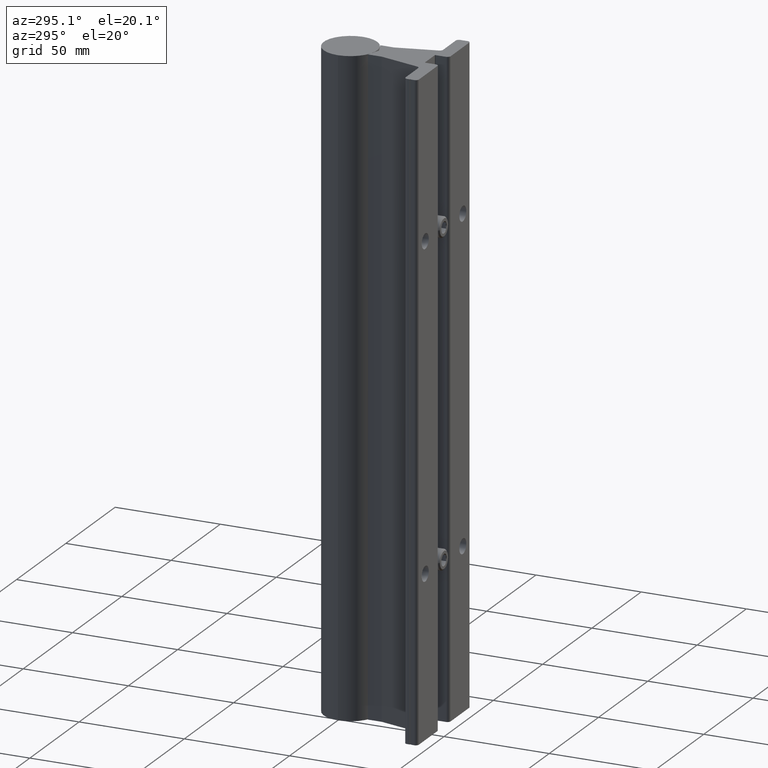
[diagram: clean part render]
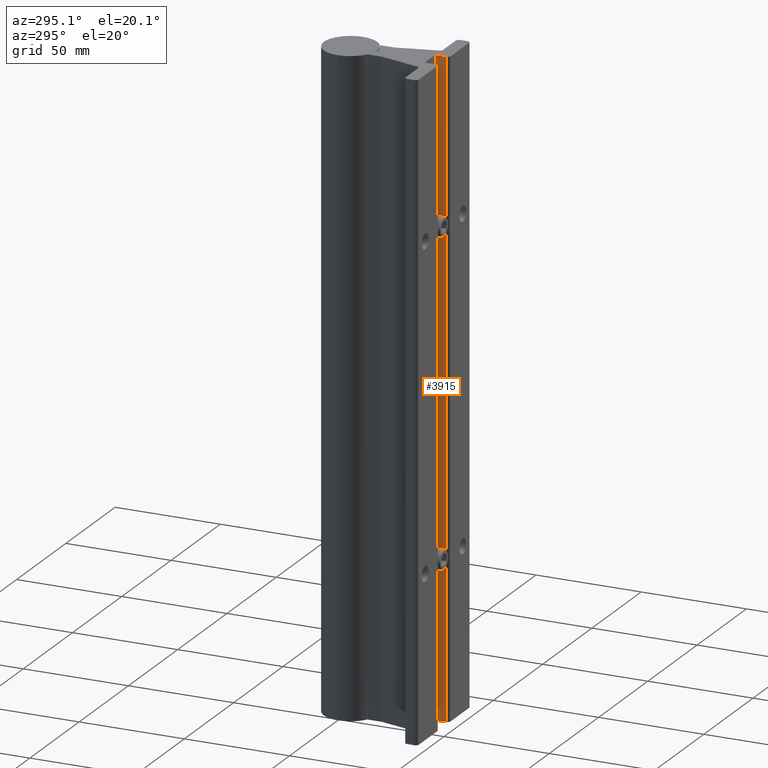
[diagram: same view with one face highlighted and labeled with its STEP entity id]
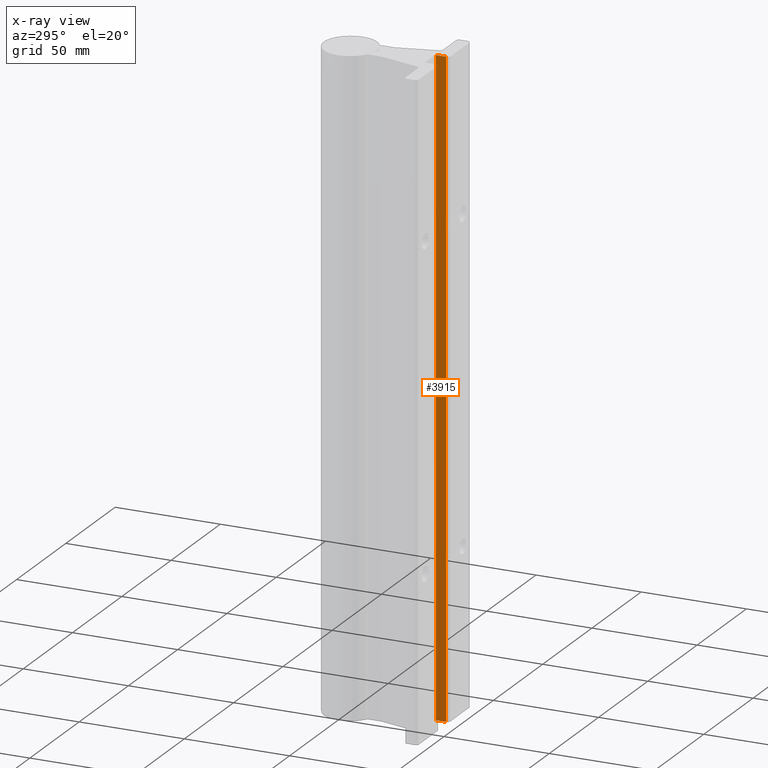
[diagram: x-ray of the same camera — body ghosted, the highlighted face saturated]
A machine part, auxiliary view. The second image highlights one B-rep face of the part: STEP entity #3915.
The next image is the same camera in x-ray: the body ghosted, the highlighted face saturated — about 0% of this face is hidden behind the body in this view.
In plain terms, the highlighted planar face has unit normal (-1, -0, 0).
Its self-contained STEP definition (entity closure, byte-faithful):
#34 = EDGE_CURVE ( 'NONE', #2077, #3679, #3450, .T. ) ;
#187 = CARTESIAN_POINT ( 'NONE',  ( 0.2049999999966986286, 0.06000000000000024758, -12.00000000000000178 ) ) ;
#247 = CARTESIAN_POINT ( 'NONE',  ( 0.2049999999966982400, 0.2500000000000001110, -14.49573696227415098 ) ) ;
#430 = LINE ( 'NONE', #2583, #669 ) ;
#634 = CARTESIAN_POINT ( 'NONE',  ( 0.2049999999966982400, 0.2500000000000001110, -14.49573696227415098 ) ) ;
#669 = VECTOR ( 'NONE', #3870, 39.37007874015748143 ) ;
#808 = CARTESIAN_POINT ( 'NONE',  ( 0.2049999999966982400, 0.2500000000000001110, 0.000000000000000000 ) ) ;
#876 = LINE ( 'NONE', #2106, #892 ) ;
#892 = VECTOR ( 'NONE', #3347, 39.37007874015748143 ) ;
#992 = VECTOR ( 'NONE', #3676, 39.37007874015748143 ) ;
#1068 = ORIENTED_EDGE ( 'NONE', *, *, #2284, .T. ) ;
#1118 = EDGE_CURVE ( 'NONE', #2419, #2077, #876, .T. ) ;
#1444 = EDGE_CURVE ( 'NONE', #3679, #1922, #1447, .T. ) ;
#1447 = LINE ( 'NONE', #808, #2123 ) ;
#1922 = VERTEX_POINT ( 'NONE', #2414 ) ;
#2030 = ORIENTED_EDGE ( 'NONE', *, *, #1444, .F. ) ;
#2077 = VERTEX_POINT ( 'NONE', #3407 ) ;
#2106 = CARTESIAN_POINT ( 'NONE',  ( 0.2049999999966982400, 0.2500000000000001110, -12.00000000000000178 ) ) ;
#2123 = VECTOR ( 'NONE', #2649, 39.37007874015748143 ) ;
#2284 = EDGE_CURVE ( 'NONE', #2419, #1922, #430, .T. ) ;
#2414 = CARTESIAN_POINT ( 'NONE',  ( 0.2049999999966986286, 0.06000000000000027534, 0.000000000000000000 ) ) ;
#2419 = VERTEX_POINT ( 'NONE', #187 ) ;
#2470 = AXIS2_PLACEMENT_3D ( 'NONE', #247, #3383, #3623 ) ;
#2583 = CARTESIAN_POINT ( 'NONE',  ( 0.2049999999966986286, 0.06000000000000027534, -14.49573696227415098 ) ) ;
#2646 = ORIENTED_EDGE ( 'NONE', *, *, #1118, .F. ) ;
#2649 = DIRECTION ( 'NONE',  ( 1.976995258572823265E-15, -1.000000000000000000, 0.000000000000000000 ) ) ;
#2783 = CARTESIAN_POINT ( 'NONE',  ( 0.2049999999966982123, 0.2500000000000001110, 0.000000000000000000 ) ) ;
#2887 = ORIENTED_EDGE ( 'NONE', *, *, #34, .F. ) ;
#3015 = FACE_OUTER_BOUND ( 'NONE', #3512, .T. ) ;
#3347 = DIRECTION ( 'NONE',  ( -1.976995258572823265E-15, 1.000000000000000000, 0.000000000000000000 ) ) ;
#3383 = DIRECTION ( 'NONE',  ( -1.000000000000000000, -1.976995258572823265E-15, 0.000000000000000000 ) ) ;
#3407 = CARTESIAN_POINT ( 'NONE',  ( 0.2049999999966982123, 0.2500000000000000555, -12.00000000000000178 ) ) ;
#3450 = LINE ( 'NONE', #634, #992 ) ;
#3512 = EDGE_LOOP ( 'NONE', ( #2646, #1068, #2030, #2887 ) ) ;
#3623 = DIRECTION ( 'NONE',  ( 1.976995258572823265E-15, -1.000000000000000000, 0.000000000000000000 ) ) ;
#3647 = PLANE ( 'NONE',  #2470 ) ;
#3676 = DIRECTION ( 'NONE',  ( 0.000000000000000000, 0.000000000000000000, 1.000000000000000000 ) ) ;
#3679 = VERTEX_POINT ( 'NONE', #2783 ) ;
#3870 = DIRECTION ( 'NONE',  ( 0.000000000000000000, 0.000000000000000000, 1.000000000000000000 ) ) ;
#3915 = ADVANCED_FACE ( 'NONE', ( #3015 ), #3647, .T. ) ;